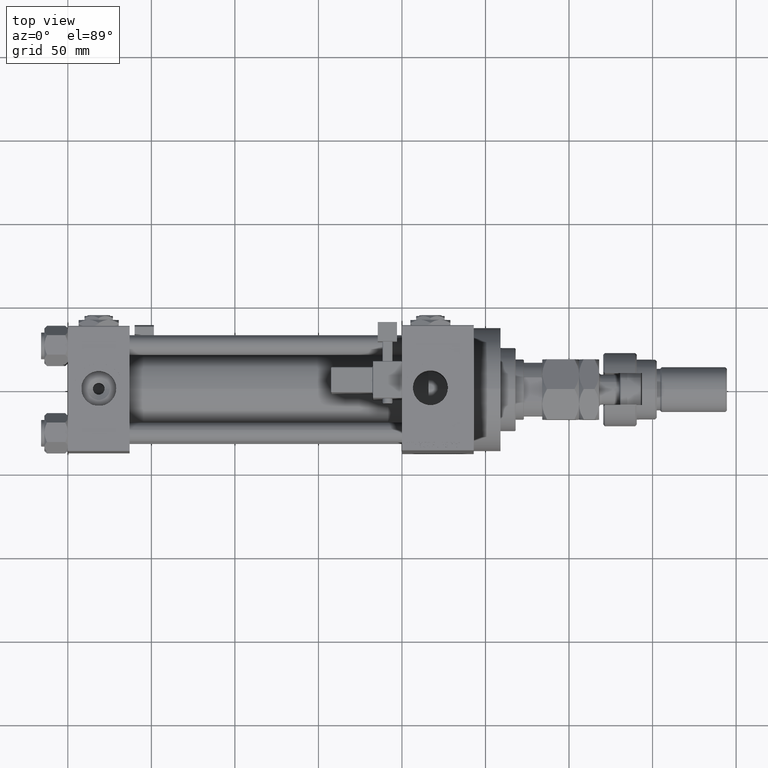
[diagram: clean part render]
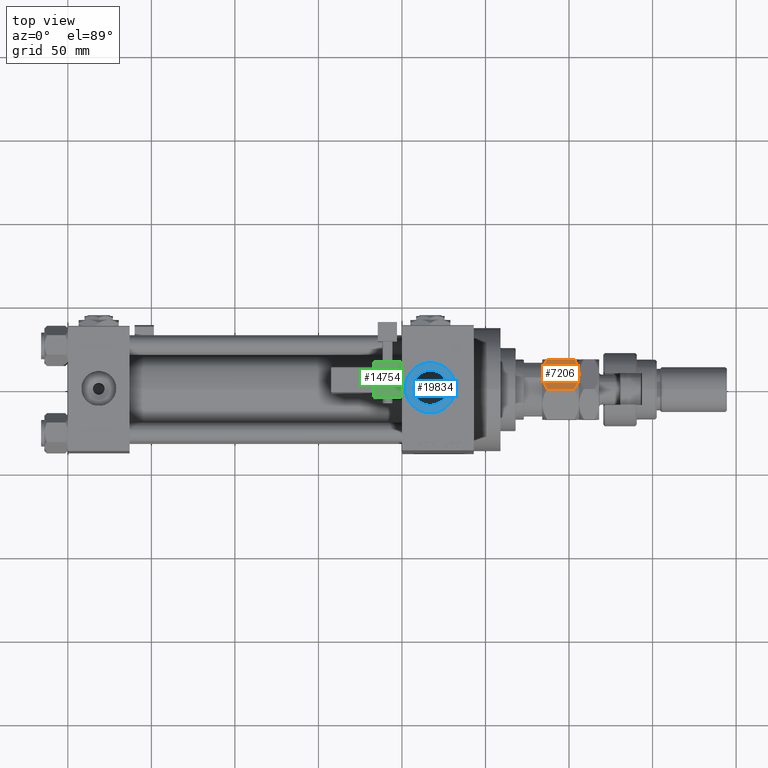
[diagram: same view with three faces highlighted in distinct colors, each labeled with its STEP entity id]
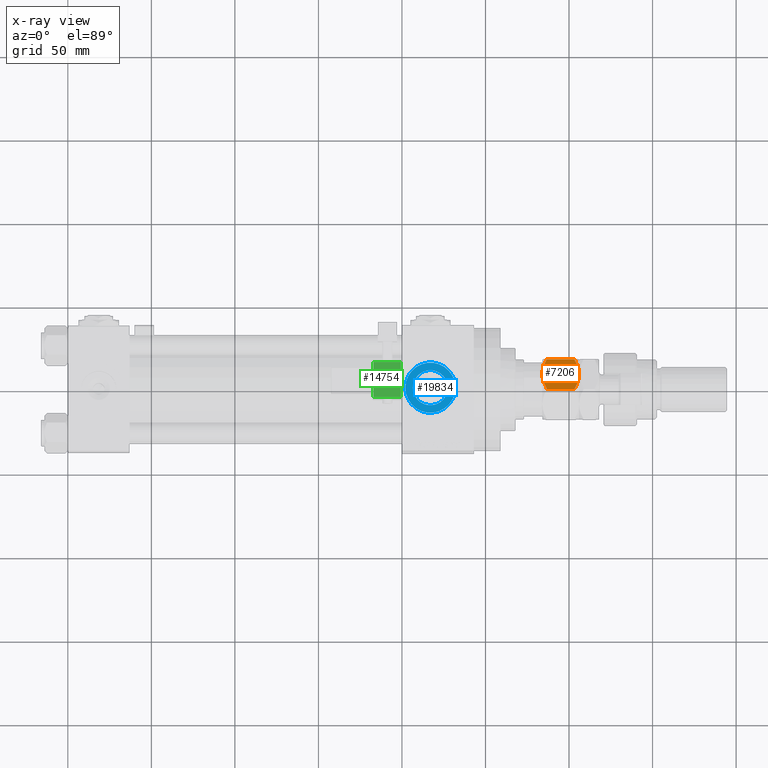
[diagram: x-ray of the same camera — body ghosted, the three highlighted faces saturated]
A machine part, top view with three faces highlighted in distinct colors.
The next image is the same camera in x-ray (body ghosted, the three faces saturated) — at least one of them is partly hidden behind the body in this view.
Their STEP definitions:

[orange] entity #7206 — the highlighted planar face has unit normal (0, -0.5, -0.866).
#145 = DIRECTION ( 'NONE',  ( 1.000000000000000000, 0.000000000000000000, -0.000000000000000000 ) ) ;
#529 = EDGE_CURVE ( 'NONE', #10404, #38687, #31755, .T. ) ;
#960 = PLANE ( 'NONE',  #37369 ) ;
#2389 = CARTESIAN_POINT ( 'NONE',  ( -18.00000000000000000, -10.39230484541326582, 2.784609690826517436 ) ) ;
#4223 = EDGE_LOOP ( 'NONE', ( #45903, #13512, #45726, #27694, #9186, #23378 ) ) ;
#4406 = CARTESIAN_POINT ( 'NONE',  ( -17.99999999999999289, 7.496347219517978999, 20.50523559702920195 ) ) ;
#4936 = CARTESIAN_POINT ( 'NONE',  ( -18.00000000000000711, 6.209292796908482792, 20.96337695072463703 ) ) ;
#5216 = CARTESIAN_POINT ( 'NONE',  ( -18.00000000000000000, 0.000000000000000000, 0.000000000000000000 ) ) ;
#5686 = CARTESIAN_POINT ( 'NONE',  ( -18.00000000000000711, 3.606660380382270326, 0.3366165194802389071 ) ) ;
#7077 = CARTESIAN_POINT ( 'NONE',  ( -18.00000000000000000, -6.209292796908479239, 1.036623049275358754 ) ) ;
#7132 = CARTESIAN_POINT ( 'NONE',  ( -18.00000000000000711, -6.216134505391694098, 20.97498393630432645 ) ) ;
#7206 = ADVANCED_FACE ( 'NONE', ( #8161 ), #960, .F. ) ;
#8161 = FACE_OUTER_BOUND ( 'NONE', #4223, .T. ) ;
#9186 = ORIENTED_EDGE ( 'NONE', *, *, #52329, .T. ) ;
#10404 = VERTEX_POINT ( 'NONE', #11453 ) ;
#10410 = CARTESIAN_POINT ( 'NONE',  ( -18.00000000000000355, -5.777644679957243845, 0.8999462410975485049 ) ) ;
#11337 = EDGE_CURVE ( 'NONE', #38687, #33390, #40336, .T. ) ;
#11453 = CARTESIAN_POINT ( 'NONE',  ( -18.00000000000000000, -10.39230484541326582, 19.21539030917347901 ) ) ;
#11640 = CARTESIAN_POINT ( 'NONE',  ( -18.00000000000000000, -10.39230484541326582, 2.784609690826517436 ) ) ;
#12690 = CARTESIAN_POINT ( 'NONE',  ( -18.00000000000000000, 8.763088818352416709, 19.99514569897121774 ) ) ;
#13227 = CARTESIAN_POINT ( 'NONE',  ( -18.00000000000000355, 1.830228188859417182, 22.00000000000001776 ) ) ;
#13512 = ORIENTED_EDGE ( 'NONE', *, *, #529, .F. ) ;
#13983 = CARTESIAN_POINT ( 'NONE',  ( -18.00000000000000355, 8.761367480501975891, 2.004069294401323198 ) ) ;
#14116 = B_SPLINE_CURVE_WITH_KNOTS ( 'NONE', 3,
 ( #36087, #43842, #18145, #52142, #22850, #5686, #27265, #22573, #23108, #13983, #31128, #14800 ),
 .UNSPECIFIED., .F., .F.,
 ( 4, 2, 2, 2, 2, 4 ),
 ( 0.03866324973303089663, 0.04001676336829056158, 0.04137027700355023346, 0.04407730427406956336, 0.04678433154458890020, 0.04949135881510823010 ),
 .UNSPECIFIED. ) ;
#14800 = CARTESIAN_POINT ( 'NONE',  ( -18.00000000000000000, 10.39230484541327115, 2.784609690826521433 ) ) ;
#14822 = CARTESIAN_POINT ( 'NONE',  ( -18.00000000000000000, 0.000000000000000000, 0.000000000000000000 ) ) ;
#15144 = CARTESIAN_POINT ( 'NONE',  ( -18.00000000000000355, -8.761367480501970562, 19.99593070559867414 ) ) ;
#15360 = CARTESIAN_POINT ( 'NONE',  ( -18.00000000000000000, -3.606961701950821109, 0.2821992827987603869 ) ) ;
#15419 = CARTESIAN_POINT ( 'NONE',  ( -18.00000000000000355, -0.4570166227920087199, 22.00000000000001421 ) ) ;
#15648 = CARTESIAN_POINT ( 'NONE',  ( -18.00000000000000000, -7.068075135443438128, 1.333788718270820350 ) ) ;
#15706 = CARTESIAN_POINT ( 'NONE',  ( -18.00000000000000000, -4.484118396622227110, 21.46845322619605767 ) ) ;
#15825 = B_SPLINE_CURVE_WITH_KNOTS ( 'NONE', 3,
 ( #19862, #15419, #45292, #53861, #49438, #40311, #15706, #7132, #36428, #15144, #32017, #19581 ),
 .UNSPECIFIED., .F., .F.,
 ( 4, 2, 2, 2, 2, 4 ),
 ( 0.03866324973303091050, 0.04001676336829057545, 0.04137027700355024040, 0.04407730427406957724, 0.04678433154458891408, 0.04949135881510824397 ),
 .UNSPECIFIED. ) ;
#15976 = DIRECTION ( 'NONE',  ( -0.000000000000000000, -0.000000000000000000, -1.000000000000000000 ) ) ;
#17165 = CARTESIAN_POINT ( 'NONE',  ( -17.99999999999999645, 0.000000000000000000, 22.00000000000000000 ) ) ;
#17813 = CARTESIAN_POINT ( 'NONE',  ( -18.00000000000000000, 10.39230484541327293, 22.00000000000000000 ) ) ;
#18145 = CARTESIAN_POINT ( 'NONE',  ( -17.99999999999999645, 0.9155406990339314266, 0.01761543672925007520 ) ) ;
#19581 = CARTESIAN_POINT ( 'NONE',  ( -18.00000000000000000, -10.39230484541326582, 19.21539030917347901 ) ) ;
#19862 = CARTESIAN_POINT ( 'NONE',  ( -17.99999999999999645, 0.000000000000000000, 22.00000000000000000 ) ) ;
#19946 = EDGE_CURVE ( 'NONE', #37829, #38753, #37628, .T. ) ;
#21279 = CARTESIAN_POINT ( 'NONE',  ( -17.99999999999999645, 5.777644679957247398, 21.10005375890244039 ) ) ;
#22573 = CARTESIAN_POINT ( 'NONE',  ( -18.00000000000000000, 6.216134505391694098, 1.025016063695673774 ) ) ;
#22850 = CARTESIAN_POINT ( 'NONE',  ( -18.00000000000000000, 2.269920501599953511, 0.1372108013979898844 ) ) ;
#23108 = CARTESIAN_POINT ( 'NONE',  ( -17.99999999999999645, 7.070713019734868432, 1.323462702483232833 ) ) ;
#23378 = ORIENTED_EDGE ( 'NONE', *, *, #50670, .F. ) ;
#23504 = CARTESIAN_POINT ( 'NONE',  ( -18.00000000000000000, 10.39230484541327293, 19.21539030917347546 ) ) ;
#24878 = CARTESIAN_POINT ( 'NONE',  ( -18.00000000000000355, 3.606961701950826438, 21.71780071720124283 ) ) ;
#25434 = CARTESIAN_POINT ( 'NONE',  ( -18.00000000000000000, 10.39230484541327293, 19.21539030917347546 ) ) ;
#25956 = CARTESIAN_POINT ( 'NONE',  ( -18.00000000000000000, 9.585738860786747750, 19.61867330148673716 ) ) ;
#26115 = DIRECTION ( 'NONE',  ( -0.000000000000000000, 0.000000000000000000, -1.000000000000000000 ) ) ;
#26923 = VECTOR ( 'NONE', #15976, 1000.000000000000000 ) ;
#26991 = EDGE_CURVE ( 'NONE', #38753, #10404, #15825, .T. ) ;
#27265 = CARTESIAN_POINT ( 'NONE',  ( -18.00000000000000355, 4.484118396622230662, 0.5315467738039389989 ) ) ;
#27694 = ORIENTED_EDGE ( 'NONE', *, *, #19946, .F. ) ;
#31128 = CARTESIAN_POINT ( 'NONE',  ( -18.00000000000000000, 9.585844502997485250, 2.381379519618630702 ) ) ;
#31418 = CARTESIAN_POINT ( 'NONE',  ( -18.00000000000000000, -8.763088818352413156, 2.004854301028774266 ) ) ;
#31680 = DIRECTION ( 'NONE',  ( -0.000000000000000000, -0.000000000000000000, -1.000000000000000000 ) ) ;
#31755 = LINE ( 'NONE', #51673, #26923 ) ;
#32017 = CARTESIAN_POINT ( 'NONE',  ( -18.00000000000000000, -9.585844502997481698, 19.61862048038136308 ) ) ;
#33390 = VERTEX_POINT ( 'NONE', #5216 ) ;
#36087 = CARTESIAN_POINT ( 'NONE',  ( -18.00000000000000000, 0.000000000000000000, 0.000000000000000000 ) ) ;
#36428 = CARTESIAN_POINT ( 'NONE',  ( -18.00000000000000000, -7.070713019734865767, 20.67653729751676650 ) ) ;
#37369 = AXIS2_PLACEMENT_3D ( 'NONE', #17813, #145, #26115 ) ;
#37628 = B_SPLINE_CURVE_WITH_KNOTS ( 'NONE', 3,
 ( #25434, #25956, #12690, #4406, #42283, #4936, #21279, #24878, #13227, #54458 ),
 .UNSPECIFIED., .F., .F.,
 ( 4, 2, 2, 2, 4 ),
 ( 0.02782233635826646123, 0.03053256470195757355, 0.03188767887380312971, 0.03324279304564868587, 0.03866324973303091050 ),
 .UNSPECIFIED. ) ;
#37829 = VERTEX_POINT ( 'NONE', #23504 ) ;
#38687 = VERTEX_POINT ( 'NONE', #11640 ) ;
#38753 = VERTEX_POINT ( 'NONE', #17165 ) ;
#39976 = CARTESIAN_POINT ( 'NONE',  ( -17.99999999999999645, -7.496347219517973670, 1.494764402970788497 ) ) ;
#40084 = VECTOR ( 'NONE', #31680, 1000.000000000000000 ) ;
#40311 = CARTESIAN_POINT ( 'NONE',  ( -18.00000000000000355, -3.606660380382266329, 21.66338348051975871 ) ) ;
#40336 = B_SPLINE_CURVE_WITH_KNOTS ( 'NONE', 3,
 ( #2389, #52424, #31418, #39976, #15648, #7077, #10410, #15360, #48295, #14822 ),
 .UNSPECIFIED., .F., .F.,
 ( 4, 2, 2, 2, 4 ),
 ( 0.02782233635826646123, 0.03053256470195757008, 0.03188767887380312277, 0.03324279304564867893, 0.03866324973303089663 ),
 .UNSPECIFIED. ) ;
#42283 = CARTESIAN_POINT ( 'NONE',  ( -17.99999999999999645, 7.068075135443441681, 20.66621128172916499 ) ) ;
#43842 = CARTESIAN_POINT ( 'NONE',  ( -18.00000000000000355, 0.4570166227920097191, -1.873996868329094797E-14 ) ) ;
#44669 = CARTESIAN_POINT ( 'NONE',  ( -18.00000000000000000, 10.39230484541327293, 22.00000000000000000 ) ) ;
#45208 = CARTESIAN_POINT ( 'NONE',  ( -18.00000000000000000, 10.39230484541327115, 2.784609690826521433 ) ) ;
#45292 = CARTESIAN_POINT ( 'NONE',  ( -18.00000000000000000, -0.9155406990339308715, 21.98238456327074530 ) ) ;
#45726 = ORIENTED_EDGE ( 'NONE', *, *, #26991, .F. ) ;
#45897 = VERTEX_POINT ( 'NONE', #45208 ) ;
#45903 = ORIENTED_EDGE ( 'NONE', *, *, #11337, .F. ) ;
#48295 = CARTESIAN_POINT ( 'NONE',  ( -18.00000000000000355, -1.830228188859414518, -1.798420353610330795E-14 ) ) ;
#49438 = CARTESIAN_POINT ( 'NONE',  ( -18.00000000000000000, -2.269920501599952622, 21.86278919860200531 ) ) ;
#50670 = EDGE_CURVE ( 'NONE', #33390, #45897, #14116, .T. ) ;
#51673 = CARTESIAN_POINT ( 'NONE',  ( -18.00000000000000000, -10.39230484541326582, 22.00000000000000000 ) ) ;
#52142 = CARTESIAN_POINT ( 'NONE',  ( -17.99999999999999645, 1.820915739938816502, 0.08623745797432426363 ) ) ;
#52329 = EDGE_CURVE ( 'NONE', #37829, #45897, #53519, .T. ) ;
#52424 = CARTESIAN_POINT ( 'NONE',  ( -18.00000000000000000, -9.585738860786737092, 2.381326698513256179 ) ) ;
#53519 = LINE ( 'NONE', #44669, #40084 ) ;
#53861 = CARTESIAN_POINT ( 'NONE',  ( -18.00000000000000000, -1.820915739938815392, 21.91376254202566543 ) ) ;
#54458 = CARTESIAN_POINT ( 'NONE',  ( -17.99999999999999645, 0.000000000000000000, 22.00000000000000000 ) ) ;

[blue] entity #19834 — the highlighted planar face has unit normal (0, 0, 1).
#1283 = CIRCLE ( 'NONE', #12762, 15.00000000000001421 ) ;
#2893 = CARTESIAN_POINT ( 'NONE',  ( 217.0000000000000284, -1.184237892933500047E-14, 63.79999999999996874 ) ) ;
#2899 = DIRECTION ( 'NONE',  ( 1.000000000000000000, 0.000000000000000000, 0.000000000000000000 ) ) ;
#4309 = ORIENTED_EDGE ( 'NONE', *, *, #13121, .T. ) ;
#7345 = AXIS2_PLACEMENT_3D ( 'NONE', #53977, #31869, #15821 ) ;
#7735 = FACE_OUTER_BOUND ( 'NONE', #30605, .T. ) ;
#12762 = AXIS2_PLACEMENT_3D ( 'NONE', #19774, #15617, #2899 ) ;
#13121 = EDGE_CURVE ( 'NONE', #38965, #35190, #49132, .T. ) ;
#14366 = EDGE_CURVE ( 'NONE', #29030, #16142, #45498, .T. ) ;
#15617 = DIRECTION ( 'NONE',  ( 0.000000000000000000, 0.000000000000000000, 1.000000000000000000 ) ) ;
#15821 = DIRECTION ( 'NONE',  ( 1.000000000000000000, 0.000000000000000000, 0.000000000000000000 ) ) ;
#16142 = VERTEX_POINT ( 'NONE', #39758 ) ;
#16304 = CARTESIAN_POINT ( 'NONE',  ( 202.0000000000000000, -1.000540873061396536E-14, 63.79999999999996874 ) ) ;
#17900 = ORIENTED_EDGE ( 'NONE', *, *, #32440, .T. ) ;
#19774 = CARTESIAN_POINT ( 'NONE',  ( 217.0000000000000284, -1.184237892933500047E-14, 63.79999999999996874 ) ) ;
#19834 = ADVANCED_FACE ( 'NONE', ( #29023, #7735 ), #45890, .T. ) ;
#24626 = ORIENTED_EDGE ( 'NONE', *, *, #50112, .T. ) ;
#26307 = AXIS2_PLACEMENT_3D ( 'NONE', #40630, #53904, #37307 ) ;
#28720 = AXIS2_PLACEMENT_3D ( 'NONE', #2893, #31928, #53494 ) ;
#29023 = FACE_BOUND ( 'NONE', #47864, .T. ) ;
#29030 = VERTEX_POINT ( 'NONE', #38111 ) ;
#30605 = EDGE_LOOP ( 'NONE', ( #4309, #17900 ) ) ;
#31869 = DIRECTION ( 'NONE',  ( -0.000000000000000000, -0.000000000000000000, -1.000000000000000000 ) ) ;
#31928 = DIRECTION ( 'NONE',  ( -0.000000000000000000, -0.000000000000000000, -1.000000000000000000 ) ) ;
#32440 = EDGE_CURVE ( 'NONE', #35190, #38965, #1283, .T. ) ;
#33292 = CARTESIAN_POINT ( 'NONE',  ( 217.0000000000000284, -1.184237892933500047E-14, 63.79999999999996874 ) ) ;
#34735 = CIRCLE ( 'NONE', #7345, 10.47999999999998977 ) ;
#35190 = VERTEX_POINT ( 'NONE', #16304 ) ;
#37307 = DIRECTION ( 'NONE',  ( 1.000000000000000000, 0.000000000000000000, -0.000000000000000000 ) ) ;
#38111 = CARTESIAN_POINT ( 'NONE',  ( 206.5200000000000387, -1.184237892933500047E-14, 63.79999999999996874 ) ) ;
#38965 = VERTEX_POINT ( 'NONE', #53057 ) ;
#39758 = CARTESIAN_POINT ( 'NONE',  ( 227.4800000000000182, -1.055894908382857656E-14, 63.79999999999996874 ) ) ;
#40630 = CARTESIAN_POINT ( 'NONE',  ( 217.0000000000000284, -1.184237892933500047E-14, 63.79999999999996874 ) ) ;
#45070 = ORIENTED_EDGE ( 'NONE', *, *, #14366, .T. ) ;
#45498 = CIRCLE ( 'NONE', #28720, 10.47999999999998977 ) ;
#45580 = AXIS2_PLACEMENT_3D ( 'NONE', #33292, #50175, #46013 ) ;
#45890 = PLANE ( 'NONE',  #26307 ) ;
#46013 = DIRECTION ( 'NONE',  ( 1.000000000000000000, 0.000000000000000000, 0.000000000000000000 ) ) ;
#47864 = EDGE_LOOP ( 'NONE', ( #45070, #24626 ) ) ;
#49132 = CIRCLE ( 'NONE', #45580, 15.00000000000001421 ) ;
#50112 = EDGE_CURVE ( 'NONE', #16142, #29030, #34735, .T. ) ;
#50175 = DIRECTION ( 'NONE',  ( 0.000000000000000000, 0.000000000000000000, 1.000000000000000000 ) ) ;
#53057 = CARTESIAN_POINT ( 'NONE',  ( 232.0000000000000284, -1.184237892933500047E-14, 63.79999999999996874 ) ) ;
#53494 = DIRECTION ( 'NONE',  ( 1.000000000000000000, 0.000000000000000000, 0.000000000000000000 ) ) ;
#53904 = DIRECTION ( 'NONE',  ( 0.000000000000000000, 0.000000000000000000, 1.000000000000000000 ) ) ;
#53977 = CARTESIAN_POINT ( 'NONE',  ( 217.0000000000000284, -1.184237892933500047E-14, 63.79999999999996874 ) ) ;

[green] entity #14754 — the highlighted planar face has unit normal (0, -0.0353, -0.9994).
#866 = DIRECTION ( 'NONE',  ( 0.000000000000000000, 0.000000000000000000, 1.000000000000000000 ) ) ;
#2495 = EDGE_CURVE ( 'NONE', #10733, #41306, #40124, .T. ) ;
#3786 = EDGE_CURVE ( 'NONE', #43160, #4419, #7079, .T. ) ;
#4419 = VERTEX_POINT ( 'NONE', #25192 ) ;
#4859 = ORIENTED_EDGE ( 'NONE', *, *, #2495, .T. ) ;
#5070 = CARTESIAN_POINT ( 'NONE',  ( -8.250000000000003553, -39.25000000000000000, -1.000000000000000222 ) ) ;
#7079 = LINE ( 'NONE', #48560, #39836 ) ;
#9022 = VECTOR ( 'NONE', #35102, 1000.000000000000000 ) ;
#10733 = VERTEX_POINT ( 'NONE', #5070 ) ;
#13142 = ORIENTED_EDGE ( 'NONE', *, *, #27783, .T. ) ;
#14338 = CARTESIAN_POINT ( 'NONE',  ( -8.250000000000003553, -18.25000000000000355, -1.000000000000000222 ) ) ;
#14754 = ADVANCED_FACE ( 'NONE', ( #29633 ), #38733, .F. ) ;
#15307 = ORIENTED_EDGE ( 'NONE', *, *, #44512, .T. ) ;
#16978 = VECTOR ( 'NONE', #24098, 1000.000000000000000 ) ;
#17718 = DIRECTION ( 'NONE',  ( 1.000000000000000000, 0.000000000000000000, -0.000000000000000000 ) ) ;
#17862 = ORIENTED_EDGE ( 'NONE', *, *, #3786, .T. ) ;
#21004 = CARTESIAN_POINT ( 'NONE',  ( 8.250000000000003553, -18.25000000000000355, -1.000000000000000222 ) ) ;
#22003 = VECTOR ( 'NONE', #25951, 1000.000000000000000 ) ;
#24098 = DIRECTION ( 'NONE',  ( -0.000000000000000000, 1.000000000000000000, 0.000000000000000000 ) ) ;
#25192 = CARTESIAN_POINT ( 'NONE',  ( 8.250000000000003553, -39.25000000000000000, -1.000000000000000222 ) ) ;
#25951 = DIRECTION ( 'NONE',  ( -1.000000000000000000, -0.000000000000000000, 0.000000000000000000 ) ) ;
#27783 = EDGE_CURVE ( 'NONE', #41306, #43160, #48077, .T. ) ;
#28094 = DIRECTION ( 'NONE',  ( -0.000000000000000000, -1.000000000000000000, -0.000000000000000000 ) ) ;
#29561 = CARTESIAN_POINT ( 'NONE',  ( 8.750000000000003553, -39.25000000000000000, -1.000000000000000222 ) ) ;
#29633 = FACE_OUTER_BOUND ( 'NONE', #31547, .T. ) ;
#31547 = EDGE_LOOP ( 'NONE', ( #13142, #17862, #15307, #4859 ) ) ;
#34820 = CARTESIAN_POINT ( 'NONE',  ( 8.750000000000003553, -18.25000000000000355, -1.000000000000000222 ) ) ;
#35102 = DIRECTION ( 'NONE',  ( 1.000000000000000000, -0.000000000000000000, 0.000000000000000000 ) ) ;
#36523 = CARTESIAN_POINT ( 'NONE',  ( -8.250000000000003553, -39.75000000000000000, -1.000000000000000222 ) ) ;
#38733 = PLANE ( 'NONE',  #49032 ) ;
#39836 = VECTOR ( 'NONE', #28094, 1000.000000000000000 ) ;
#40124 = LINE ( 'NONE', #36523, #16978 ) ;
#41306 = VERTEX_POINT ( 'NONE', #14338 ) ;
#43160 = VERTEX_POINT ( 'NONE', #21004 ) ;
#44512 = EDGE_CURVE ( 'NONE', #4419, #10733, #50857, .T. ) ;
#46507 = CARTESIAN_POINT ( 'NONE',  ( 8.750000000000003553, -39.75000000000000000, -1.000000000000000222 ) ) ;
#48077 = LINE ( 'NONE', #34820, #9022 ) ;
#48560 = CARTESIAN_POINT ( 'NONE',  ( 8.250000000000003553, -39.75000000000000000, -1.000000000000000222 ) ) ;
#49032 = AXIS2_PLACEMENT_3D ( 'NONE', #46507, #866, #17718 ) ;
#50857 = LINE ( 'NONE', #29561, #22003 ) ;